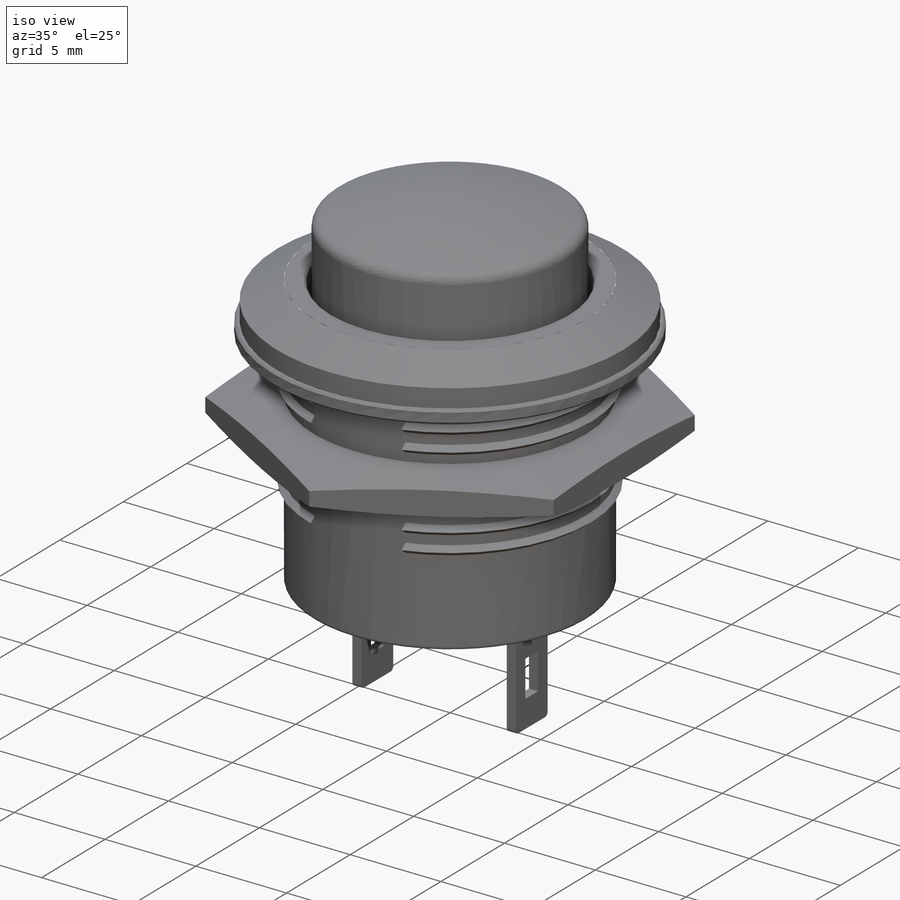
[diagram: iso view]
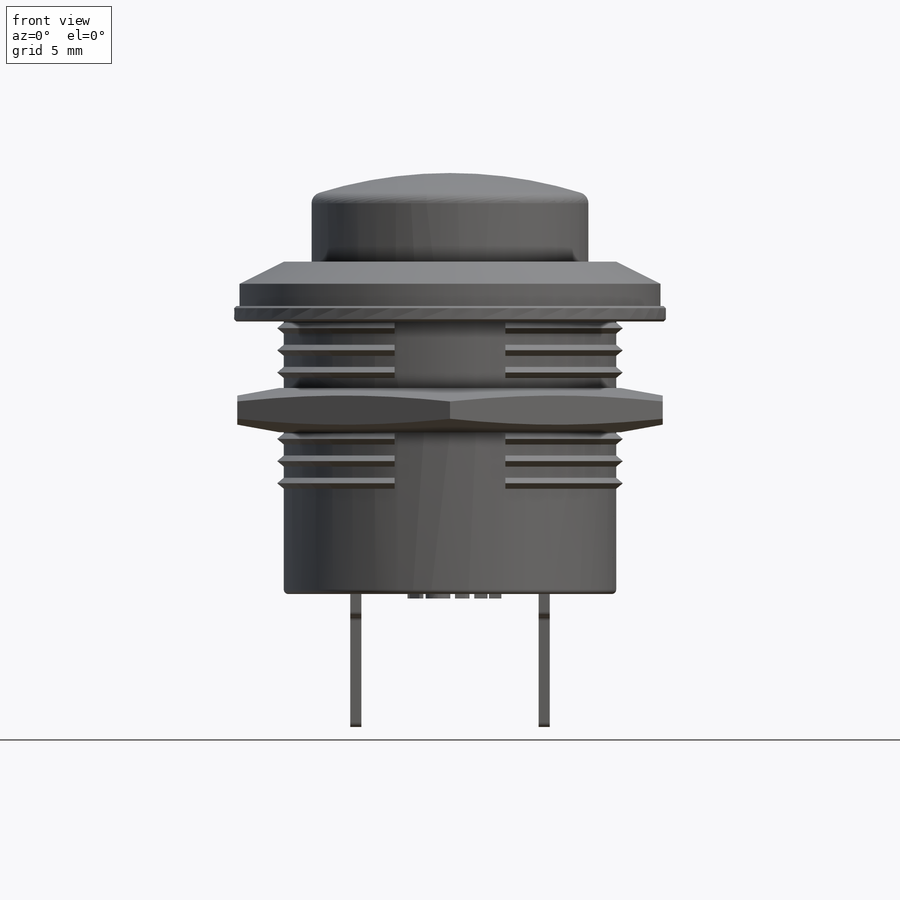
[diagram: front view]
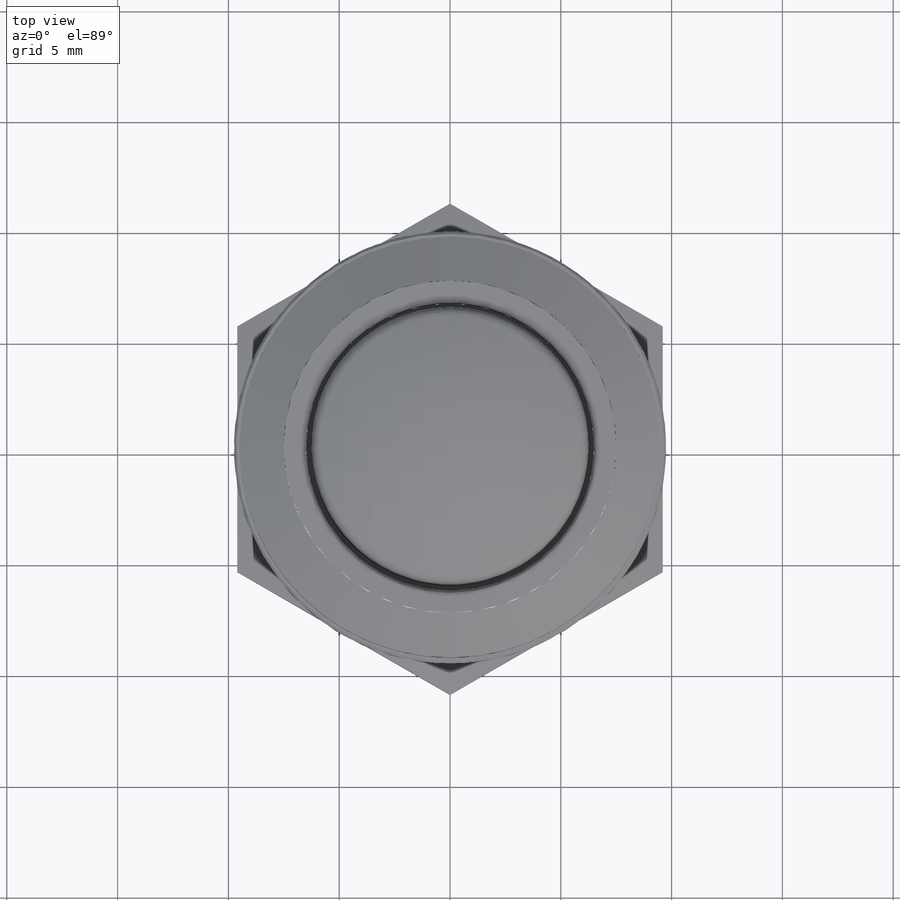
[diagram: top view]
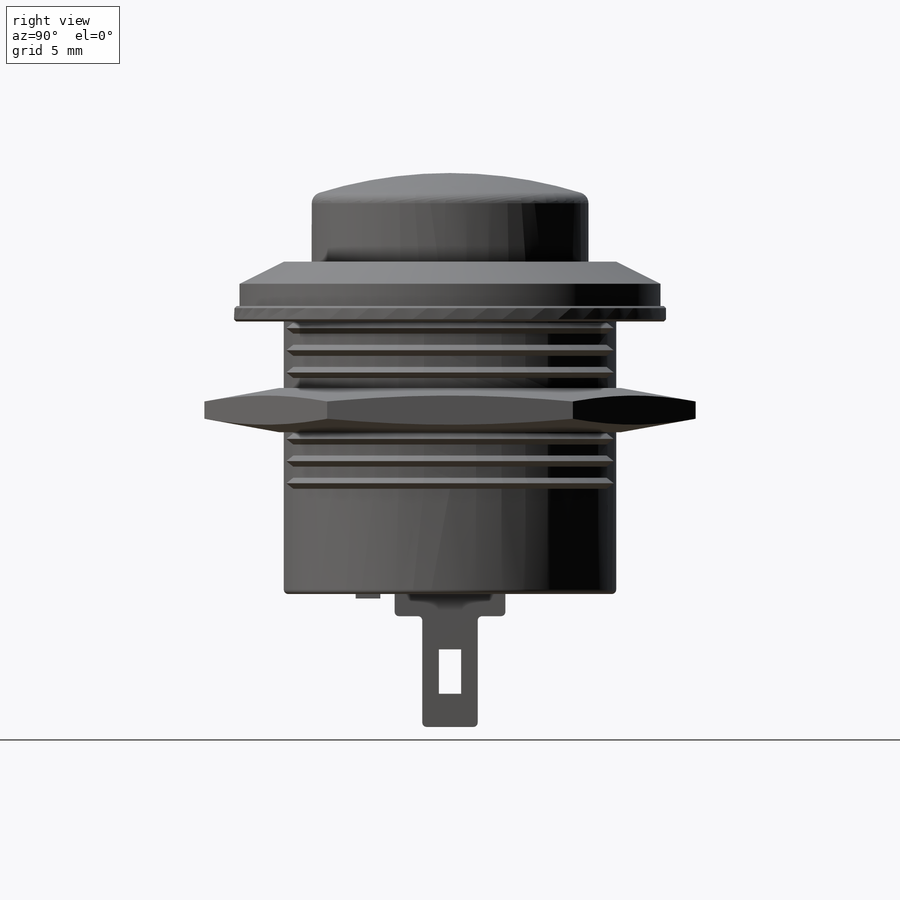
[diagram: right view]
SOLIDWORKS PART (.sldprt)
format: sldprt  version: not decoded by parser v0  size: 739,328 bytes
history: native  units: mm
features: sketch x15, extrude x8, cut_extrude x4, fillet x3, chamfer x2, material x1, dome x1, plane x1, revolve x1, pattern_linear x1, cut_revolve x1 (+13 scaffold rows collapsed)
feature tree (51):
  scaffold x13  (default folders/planes/origin — collapsed)
  material  "Material <not specified>"
  sketch  "Sketch1"  dims[D1=15.0mm]
  extrude  "Boss-Extrude1"  Depth=13mm
  sketch  "Sketch2"  dims[D1=19.0mm]
  extrude  "Boss-Extrude2"  Depth=2mm
  chamfer  "Chamfer1"  Distance=1mm
  sketch  "Sketch3"  dims[D1=13.0mm]
  cut_extrude  "Cut-Extrude1"  Depth=2mm
  sketch  "Sketch4"  dims[D1=12.5mm]
  extrude  "Boss-Extrude3"  Depth=5mm
  dome  "Dome1"
  fillet  "Fillet1"  Radius=0.5mm
  fillet  "Fillet2"  Radius=0.2mm
  sketch  "Sketch5"  dims[D1=14.0mm D2=0.2mm]
  cut_extrude  "Cut-Extrude2"  Depth=1mm
  sketch  "Sketch6"  dims[D1=4.25mm D2=4.25mm D3=5.0mm D4=5.0mm D5=0.5mm D6=0.5mm]
  extrude  "Boss-Extrude4"  Depth=1mm
  sketch  "Sketch7"  dims[D1=2.5mm D2=2.5mm]
  extrude  "Boss-Extrude5"  Depth=5mm
  fillet  "Fillet3"  Radius=0.2mm
  sketch  "Sketch8"  dims[D1=2.0mm D2=1.0mm D3=3.5mm]
  cut_extrude  "Cut-Extrude3"  [1 undecoded]
  sketch  "Sketch9"  dims[D1=19.5mm D2=15.5mm]
  extrude  "Boss-Extrude6"  Depth=0.7mm
  chamfer  "Chamfer3"  Distance=0.1mm Angle=45deg
  plane  "Plane1"  Offset=3mm
  sketch  "Sketch10"  dims[D1=19.2mm]
  sketch  "Sketch11"  dims[D1=0.3mm D2=0.5mm D3=5.0mm]
  revolve  "Revolve1"  Angle=360deg
  pattern_linear  "LPattern1"  Count1=8 Count2=1 Spacing1=1mm Spacing2=10mm
  sketch  "Sketch13"  dims[D1=5.0mm]
  cut_extrude  "Cut-Extrude4"  [1 undecoded]
  extrude  "Boss-Extrude8"  Depth=2mm
  sketch  "Sketch14"  dims[c1.D1=0.5mm c1.D2=0.5mm c1.D3=2.0mm c1.D4=2.0mm c2.D1=2.0mm c2.D2=2.0mm c2.D3=0.1mm c3.D1=0.7mm c3.D2=0.7mm]
  sketch  "Sketch15"
  cut_revolve  "Cut-Revolve4"  Angle=360deg
  sketch  "Sketch16"
  extrude  "Boss-Extrude9"  Depth=0.2mm
decode coverage: 31 of 36 modeling features carry decoded parameters
note: 2 parameter values undecoded
note: suppression state not decoded; provenance and decode notes live in map.json
